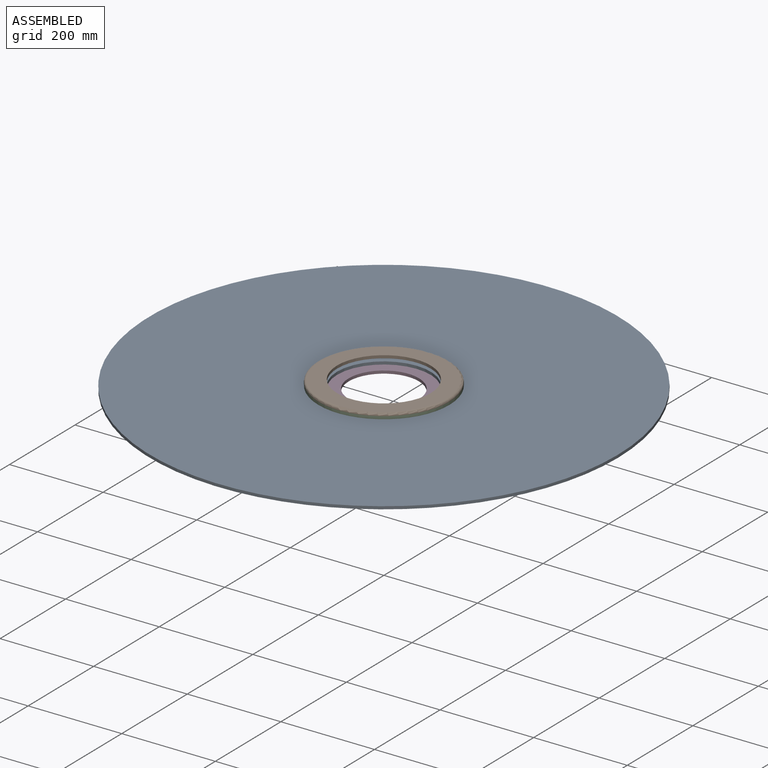
[diagram: assembled view]
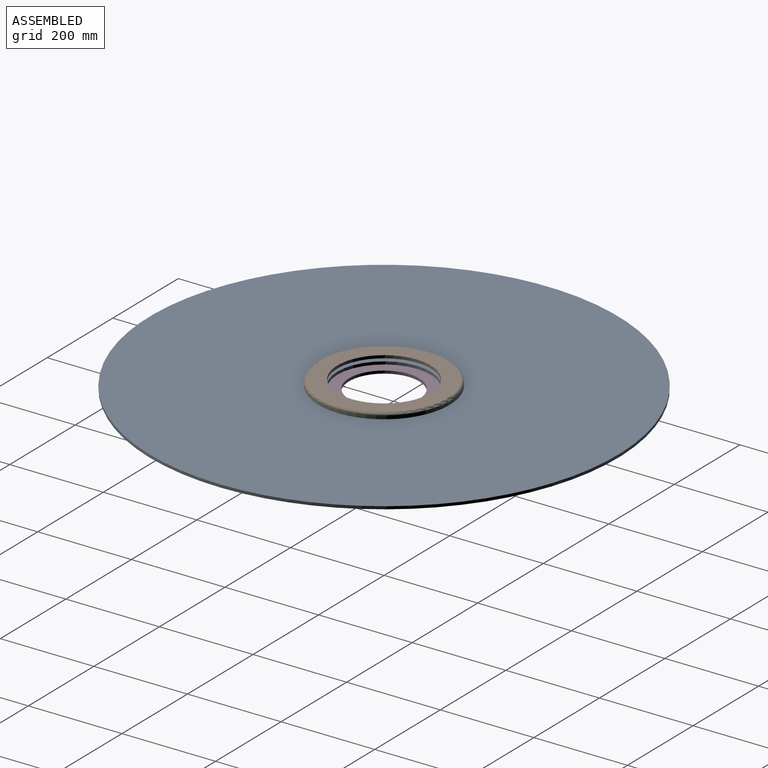
[diagram: assembled view, second angle]
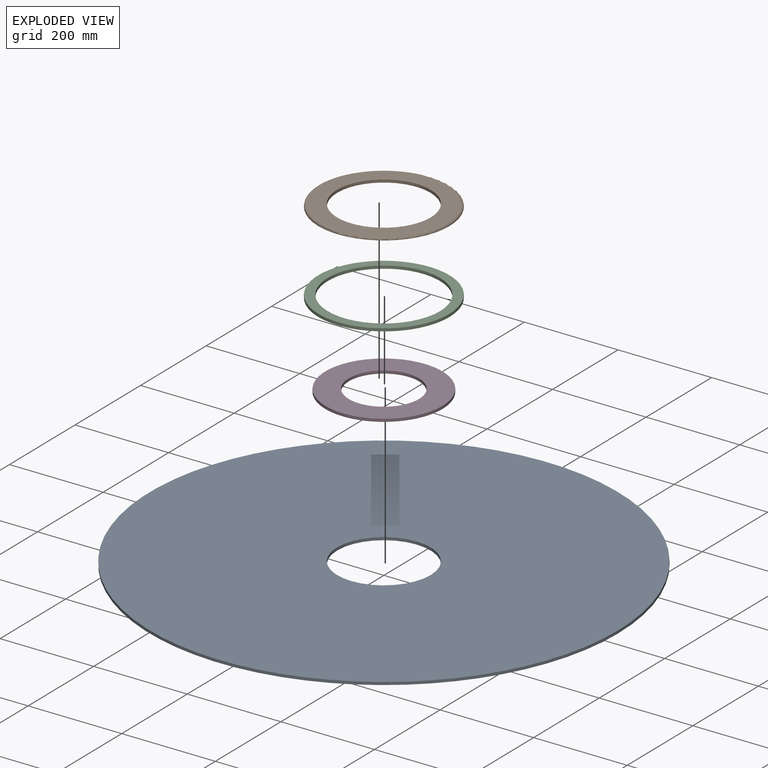
[diagram: exploded view]
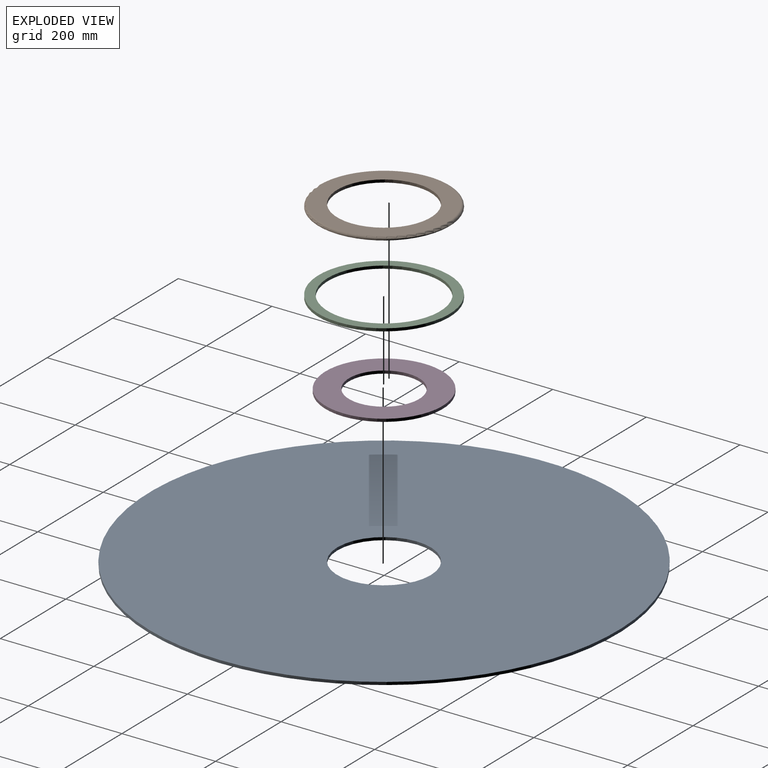
[diagram: exploded view, second angle]
ASSEMBLY  parts=4 mates=3
PART A: 4 faces, bbox 1000x1000x6 mm
  f0: cylinder r=100mm len=200mm, axis (0,0,-1), area 3769.9mm2, adj f2,f3
  f1: cylinder r=500mm len=1000mm, axis (0,0,-1), area 18849.6mm2, adj f2,f3
  f2: plane 1000x1000mm, normal (0,0,1), area 753982.2mm2, adj f0,f1
  f3: plane 1000x1000mm, normal (0,0,-1), area 753982.2mm2, adj f0,f1
PART B: 5 faces, bbox 303.1x303.1x6 mm
  f0: cylinder r=140mm len=280mm, axis (0,0,-1), area 879.6mm2, adj f3,f4
  f1: cylinder r=100mm len=200mm, axis (0,0,-1), area 3769.9mm2, adj f2,f3
  f2: plane 270x270mm, normal (0,0,1), area 25839.6mm2, adj f1,f4
  f3: plane 280x280mm, normal (0,0,-1), area 30159.3mm2, adj f0,f1
  f4: torus R=135mm, axis (0,0,1), area 6819.1mm2, adj f0,f2
PART C: 4 faces, bbox 280x280x6 mm
  f0: cylinder r=120mm len=240mm, axis (0,0,-1), area 4523.9mm2, adj f2,f3
  f1: cylinder r=140mm len=280mm, axis (0,0,-1), area 5277.9mm2, adj f2,f3
  f2: plane 280x280mm, normal (0,0,1), area 16336.3mm2, adj f0,f1
  f3: plane 280x280mm, normal (0,0,-1), area 16336.3mm2, adj f0,f1
PART D: 4 faces, bbox 250x250x6 mm
  f0: cylinder r=75mm len=150mm, axis (0,0,1), area 2827.4mm2, adj f2,f3
  f1: cylinder r=125mm len=250mm, axis (0,0,1), area 4712.4mm2, adj f2,f3
  f2: plane 250x250mm, normal (0,0,-1), area 31415.9mm2, adj f0,f1
  f3: plane 250x250mm, normal (0,0,1), area 31415.9mm2, adj f0,f1
PLACE A at identity fixed
PLACE B at identity
PLACE C at identity
PLACE D at identity
MATE fastened A.f0 <-> C.f0  axis (0,0,1) through (0,0,6)mm
MATE fastened C.f1 <-> B.f0  axis (0,0,1) through (0,0,12)mm
MATE fastened A.f0 <-> D.f0  axis (0,0,-1) through (0,0,0)mm
